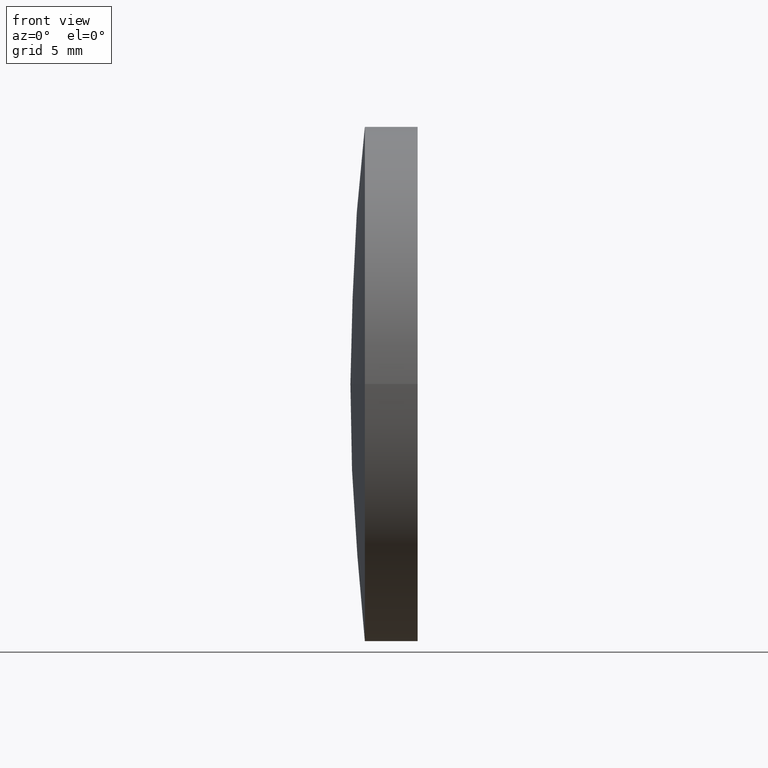
[diagram: clean part render]
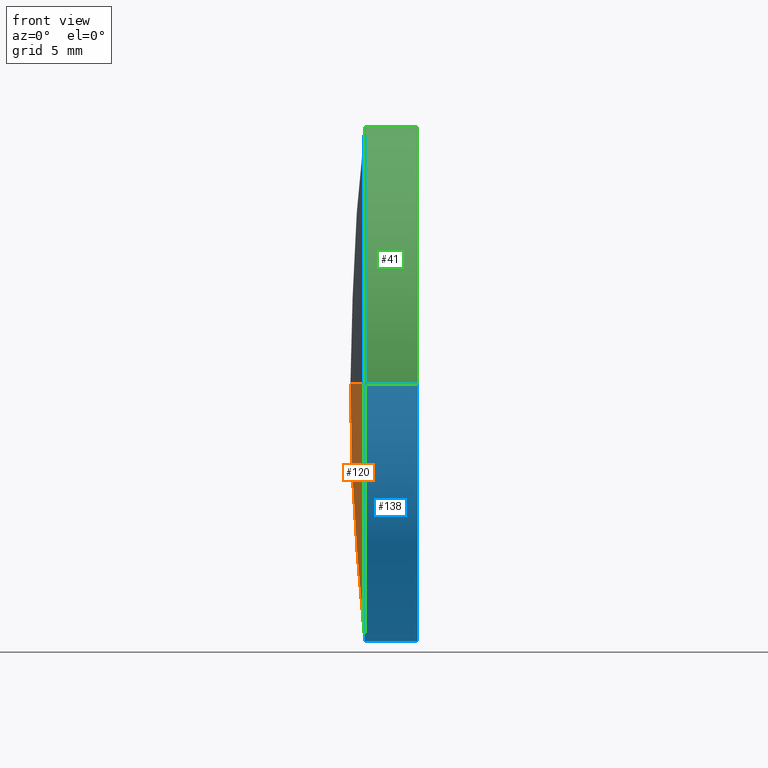
[diagram: same view with three faces highlighted in distinct colors, each labeled with its STEP entity id]
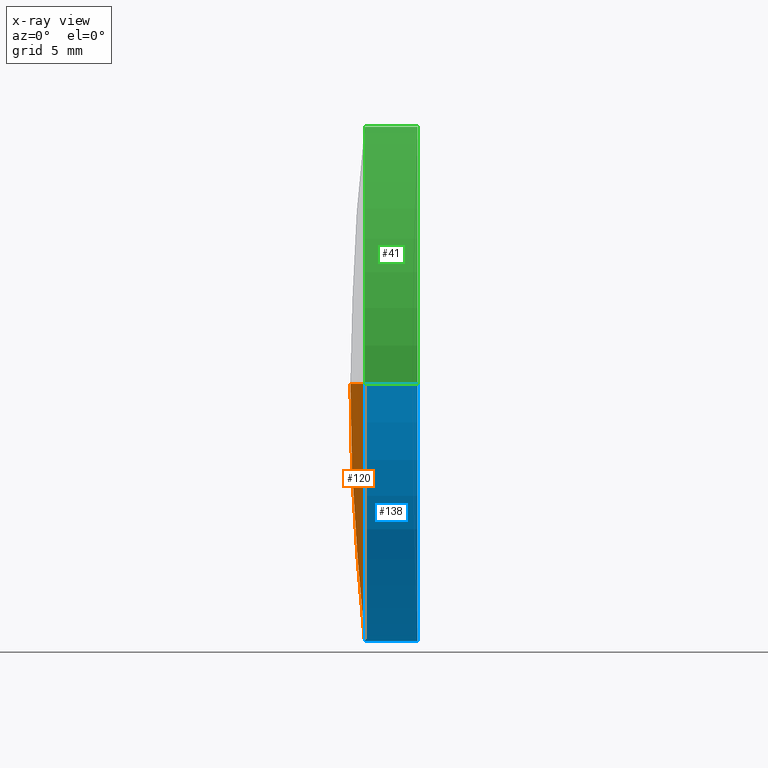
[diagram: x-ray of the same camera — body ghosted, the three highlighted faces saturated]
A machine part, front view with three faces highlighted in distinct colors.
The next image is the same camera in x-ray (body ghosted, the three faces saturated) — at least one of them is partly hidden behind the body in this view.
Their STEP definitions:

[orange] entity #120 — the highlighted spherical surface has radius 112 mm.
#3 = DIRECTION ( 'NONE',  ( -8.496118506040342700E-032, 1.224646799147353200E-016, -1.000000000000000000 ) ) ;
#7 = DIRECTION ( 'NONE',  ( -1.000000000000000000, -6.937607244762875000E-016, -0.0000000000000000000 ) ) ;
#8 = CARTESIAN_POINT ( 'NONE',  ( 234.6121936984948200, 65.21684047094031200, 0.0000000000000000000 ) ) ;
#9 = VERTEX_POINT ( 'NONE', #184 ) ;
#12 = EDGE_LOOP ( 'NONE', ( #123, #190, #127 ) ) ;
#20 = CIRCLE ( 'NONE', #181, 112.0000000000000100 ) ;
#27 = CIRCLE ( 'NONE', #140, 12.49999999999997700 ) ;
#47 = DIRECTION ( 'NONE',  ( -0.0000000000000000000, 0.0000000000000000000, 1.000000000000000000 ) ) ;
#53 = CARTESIAN_POINT ( 'NONE',  ( 123.3119241570422600, 52.71684047094034800, 0.0000000000000000000 ) ) ;
#60 = EDGE_CURVE ( 'NONE', #9, #177, #27, .T. ) ;
#63 = DIRECTION ( 'NONE',  ( 1.110223024625158500E-015, -1.000000000000000000, 0.0000000000000000000 ) ) ;
#72 = EDGE_CURVE ( 'NONE', #9, #162, #20, .T. ) ;
#88 = CARTESIAN_POINT ( 'NONE',  ( 123.3119241570422400, 65.21684047094032600, 0.0000000000000000000 ) ) ;
#90 = CARTESIAN_POINT ( 'NONE',  ( 234.6121936984948200, 65.21684047094031200, 0.0000000000000000000 ) ) ;
#99 = CIRCLE ( 'NONE', #133, 111.9999999999999900 ) ;
#102 = FACE_OUTER_BOUND ( 'NONE', #12, .T. ) ;
#105 = DIRECTION ( 'NONE',  ( 1.000000000000000000, 0.0000000000000000000, 0.0000000000000000000 ) ) ;
#110 = AXIS2_PLACEMENT_3D ( 'NONE', #90, #172, #117 ) ;
#111 = CARTESIAN_POINT ( 'NONE',  ( 234.6121936984948200, 65.21684047094031200, 0.0000000000000000000 ) ) ;
#117 = DIRECTION ( 'NONE',  ( -7.434529182757745400E-016, 1.000000000000000000, 0.0000000000000000000 ) ) ;
#120 = ADVANCED_FACE ( 'NONE', ( #102 ), #144, .T. ) ;
#123 = ORIENTED_EDGE ( 'NONE', *, *, #60, .T. ) ;
#127 = ORIENTED_EDGE ( 'NONE', *, *, #72, .F. ) ;
#133 = AXIS2_PLACEMENT_3D ( 'NONE', #111, #3, #145 ) ;
#140 = AXIS2_PLACEMENT_3D ( 'NONE', #88, #7, #63 ) ;
#142 = CARTESIAN_POINT ( 'NONE',  ( 122.6121936984948200, 65.21684047094024100, 0.0000000000000000000 ) ) ;
#144 = SPHERICAL_SURFACE ( 'NONE', #110, 111.9999999999999900 ) ;
#145 = DIRECTION ( 'NONE',  ( 0.0000000000000000000, 1.000000000000000000, 1.224646799147353200E-016 ) ) ;
#162 = VERTEX_POINT ( 'NONE', #142 ) ;
#172 = DIRECTION ( 'NONE',  ( -0.0000000000000000000, 0.0000000000000000000, -1.000000000000000000 ) ) ;
#177 = VERTEX_POINT ( 'NONE', #53 ) ;
#181 = AXIS2_PLACEMENT_3D ( 'NONE', #8, #47, #105 ) ;
#184 = CARTESIAN_POINT ( 'NONE',  ( 123.3119241570422300, 77.71684047094031200, 1.530808498934189700E-015 ) ) ;
#185 = EDGE_CURVE ( 'NONE', #177, #162, #99, .T. ) ;
#190 = ORIENTED_EDGE ( 'NONE', *, *, #185, .T. ) ;

[blue] entity #138 — the highlighted cylindrical surface (partial cylindrical patch) has radius 12.5 mm, axis along (-1, -0, -0).
#2 = CARTESIAN_POINT ( 'NONE',  ( 115.9444912979631800, 52.71684047094034800, 0.0000000000000000000 ) ) ;
#4 = VERTEX_POINT ( 'NONE', #21 ) ;
#7 = DIRECTION ( 'NONE',  ( -1.000000000000000000, -6.937607244762875000E-016, -0.0000000000000000000 ) ) ;
#9 = VERTEX_POINT ( 'NONE', #184 ) ;
#13 = ORIENTED_EDGE ( 'NONE', *, *, #66, .F. ) ;
#18 = CYLINDRICAL_SURFACE ( 'NONE', #93, 12.49999999999997700 ) ;
#21 = CARTESIAN_POINT ( 'NONE',  ( 125.8689544180530900, 77.71684047093980000, 0.0000000000000000000 ) ) ;
#27 = CIRCLE ( 'NONE', #140, 12.49999999999997700 ) ;
#31 = EDGE_LOOP ( 'NONE', ( #13, #65, #141, #167 ) ) ;
#49 = VERTEX_POINT ( 'NONE', #114 ) ;
#53 = CARTESIAN_POINT ( 'NONE',  ( 123.3119241570422600, 52.71684047094034800, 0.0000000000000000000 ) ) ;
#55 = CIRCLE ( 'NONE', #130, 12.49999999999996300 ) ;
#57 = DIRECTION ( 'NONE',  ( 1.110223024625158500E-015, -1.000000000000000000, 0.0000000000000000000 ) ) ;
#60 = EDGE_CURVE ( 'NONE', #9, #177, #27, .T. ) ;
#63 = DIRECTION ( 'NONE',  ( 1.110223024625158500E-015, -1.000000000000000000, 0.0000000000000000000 ) ) ;
#65 = ORIENTED_EDGE ( 'NONE', *, *, #152, .T. ) ;
#66 = EDGE_CURVE ( 'NONE', #4, #9, #183, .T. ) ;
#69 = DIRECTION ( 'NONE',  ( -1.000000000000000000, -6.937607244762875000E-016, -0.0000000000000000000 ) ) ;
#70 = DIRECTION ( 'NONE',  ( 0.0000000000000000000, -1.000000000000000000, 0.0000000000000000000 ) ) ;
#86 = CARTESIAN_POINT ( 'NONE',  ( 115.9444912979631700, 65.21684047094032600, 0.0000000000000000000 ) ) ;
#88 = CARTESIAN_POINT ( 'NONE',  ( 123.3119241570422400, 65.21684047094032600, 0.0000000000000000000 ) ) ;
#93 = AXIS2_PLACEMENT_3D ( 'NONE', #86, #69, #57 ) ;
#108 = LINE ( 'NONE', #2, #150 ) ;
#112 = DIRECTION ( 'NONE',  ( -1.000000000000000000, -6.937607244762875000E-016, -0.0000000000000000000 ) ) ;
#114 = CARTESIAN_POINT ( 'NONE',  ( 125.8689544180530900, 52.71684047093719300, -1.530808498934126800E-015 ) ) ;
#126 = DIRECTION ( 'NONE',  ( -1.000000000000000000, -6.937607244762875000E-016, -0.0000000000000000000 ) ) ;
#130 = AXIS2_PLACEMENT_3D ( 'NONE', #168, #112, #70 ) ;
#132 = VECTOR ( 'NONE', #135, 1000.000000000000000 ) ;
#135 = DIRECTION ( 'NONE',  ( -1.000000000000000000, -6.937607244762875000E-016, -0.0000000000000000000 ) ) ;
#138 = ADVANCED_FACE ( 'NONE', ( #160 ), #18, .T. ) ;
#140 = AXIS2_PLACEMENT_3D ( 'NONE', #88, #7, #63 ) ;
#141 = ORIENTED_EDGE ( 'NONE', *, *, #155, .T. ) ;
#150 = VECTOR ( 'NONE', #126, 1000.000000000000000 ) ;
#152 = EDGE_CURVE ( 'NONE', #4, #49, #55, .T. ) ;
#155 = EDGE_CURVE ( 'NONE', #49, #177, #108, .T. ) ;
#160 = FACE_OUTER_BOUND ( 'NONE', #31, .T. ) ;
#167 = ORIENTED_EDGE ( 'NONE', *, *, #60, .F. ) ;
#168 = CARTESIAN_POINT ( 'NONE',  ( 125.8689544180531200, 65.21684047094032600, 0.0000000000000000000 ) ) ;
#177 = VERTEX_POINT ( 'NONE', #53 ) ;
#183 = LINE ( 'NONE', #189, #132 ) ;
#184 = CARTESIAN_POINT ( 'NONE',  ( 123.3119241570422300, 77.71684047094031200, 1.530808498934189700E-015 ) ) ;
#189 = CARTESIAN_POINT ( 'NONE',  ( 115.9444912979631500, 77.71684047094029800, 1.530808498934188800E-015 ) ) ;

[green] entity #41 — the highlighted cylindrical surface (partial cylindrical patch) has radius 12.5 mm, axis along (-1, -0, -0).
#1 = EDGE_LOOP ( 'NONE', ( #11, #16, #95, #44 ) ) ;
#2 = CARTESIAN_POINT ( 'NONE',  ( 115.9444912979631800, 52.71684047094034800, 0.0000000000000000000 ) ) ;
#4 = VERTEX_POINT ( 'NONE', #21 ) ;
#5 = CIRCLE ( 'NONE', #103, 12.49999999999997700 ) ;
#9 = VERTEX_POINT ( 'NONE', #184 ) ;
#10 = CARTESIAN_POINT ( 'NONE',  ( 125.8689544180531200, 65.21684047094032600, 0.0000000000000000000 ) ) ;
#11 = ORIENTED_EDGE ( 'NONE', *, *, #43, .T. ) ;
#15 = CARTESIAN_POINT ( 'NONE',  ( 123.3119241570422400, 65.21684047094032600, 0.0000000000000000000 ) ) ;
#16 = ORIENTED_EDGE ( 'NONE', *, *, #66, .T. ) ;
#21 = CARTESIAN_POINT ( 'NONE',  ( 125.8689544180530900, 77.71684047093980000, 0.0000000000000000000 ) ) ;
#24 = CYLINDRICAL_SURFACE ( 'NONE', #116, 12.49999999999997700 ) ;
#41 = ADVANCED_FACE ( 'NONE', ( #61 ), #24, .T. ) ;
#43 = EDGE_CURVE ( 'NONE', #49, #4, #51, .T. ) ;
#44 = ORIENTED_EDGE ( 'NONE', *, *, #155, .F. ) ;
#49 = VERTEX_POINT ( 'NONE', #114 ) ;
#51 = CIRCLE ( 'NONE', #192, 12.49999999999996300 ) ;
#53 = CARTESIAN_POINT ( 'NONE',  ( 123.3119241570422600, 52.71684047094034800, 0.0000000000000000000 ) ) ;
#54 = DIRECTION ( 'NONE',  ( -1.000000000000000000, -6.937607244762875000E-016, -0.0000000000000000000 ) ) ;
#61 = FACE_OUTER_BOUND ( 'NONE', #1, .T. ) ;
#62 = DIRECTION ( 'NONE',  ( -1.000000000000000000, -6.937607244762875000E-016, -0.0000000000000000000 ) ) ;
#66 = EDGE_CURVE ( 'NONE', #4, #9, #183, .T. ) ;
#71 = DIRECTION ( 'NONE',  ( -1.000000000000000000, -6.937607244762875000E-016, -0.0000000000000000000 ) ) ;
#95 = ORIENTED_EDGE ( 'NONE', *, *, #161, .F. ) ;
#100 = DIRECTION ( 'NONE',  ( 1.110223024625158500E-015, -1.000000000000000000, 0.0000000000000000000 ) ) ;
#103 = AXIS2_PLACEMENT_3D ( 'NONE', #15, #54, #182 ) ;
#108 = LINE ( 'NONE', #2, #150 ) ;
#114 = CARTESIAN_POINT ( 'NONE',  ( 125.8689544180530900, 52.71684047093719300, -1.530808498934126800E-015 ) ) ;
#116 = AXIS2_PLACEMENT_3D ( 'NONE', #131, #71, #100 ) ;
#126 = DIRECTION ( 'NONE',  ( -1.000000000000000000, -6.937607244762875000E-016, -0.0000000000000000000 ) ) ;
#131 = CARTESIAN_POINT ( 'NONE',  ( 115.9444912979631700, 65.21684047094032600, 0.0000000000000000000 ) ) ;
#132 = VECTOR ( 'NONE', #135, 1000.000000000000000 ) ;
#135 = DIRECTION ( 'NONE',  ( -1.000000000000000000, -6.937607244762875000E-016, -0.0000000000000000000 ) ) ;
#136 = DIRECTION ( 'NONE',  ( 0.0000000000000000000, -1.000000000000000000, 0.0000000000000000000 ) ) ;
#150 = VECTOR ( 'NONE', #126, 1000.000000000000000 ) ;
#155 = EDGE_CURVE ( 'NONE', #49, #177, #108, .T. ) ;
#161 = EDGE_CURVE ( 'NONE', #177, #9, #5, .T. ) ;
#177 = VERTEX_POINT ( 'NONE', #53 ) ;
#182 = DIRECTION ( 'NONE',  ( 1.110223024625158500E-015, -1.000000000000000000, 0.0000000000000000000 ) ) ;
#183 = LINE ( 'NONE', #189, #132 ) ;
#184 = CARTESIAN_POINT ( 'NONE',  ( 123.3119241570422300, 77.71684047094031200, 1.530808498934189700E-015 ) ) ;
#189 = CARTESIAN_POINT ( 'NONE',  ( 115.9444912979631500, 77.71684047094029800, 1.530808498934188800E-015 ) ) ;
#192 = AXIS2_PLACEMENT_3D ( 'NONE', #10, #62, #136 ) ;